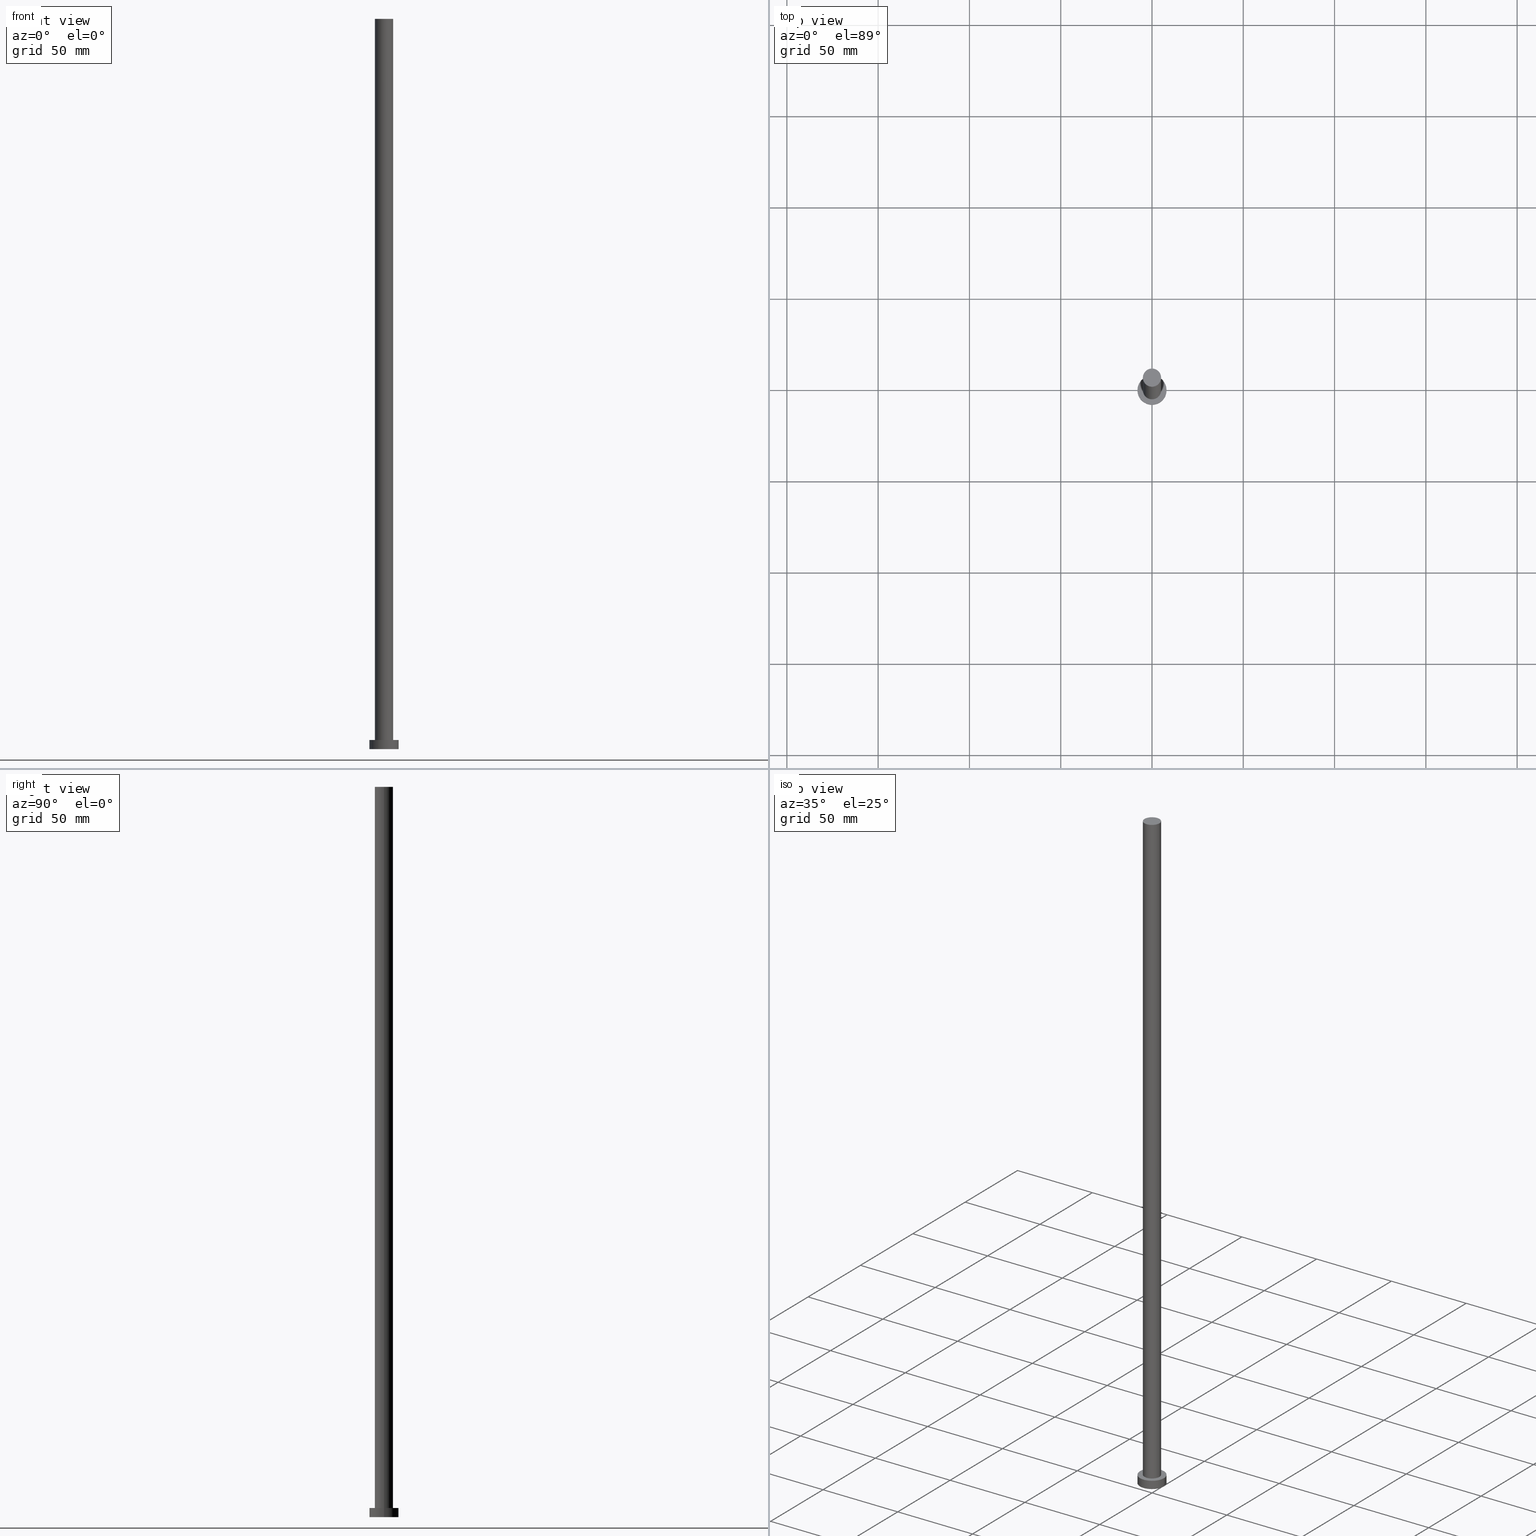
[diagram: canonical four-view strip — front | top / right | iso, engineering-drawing reading convention]
A machine part, canonical four-view strip (front | top / right | iso — engineering-drawing reading convention). The complete STEP part file that produces these views, byte-faithful:
ISO-10303-21;
HEADER;
FILE_DESCRIPTION (( 'STEP AP203' ),
    '1' );
FILE_NAME ('f08e.STEP',
    '2023-02-12T11:26:54',
    ( '' ),
    ( '' ),
    'SwSTEP 2.0',
    'SolidWorks 2019',
    '' );
FILE_SCHEMA (( 'CONFIG_CONTROL_DESIGN' ));
ENDSEC;

DATA;
#1 = EDGE_LOOP ( 'NONE', ( #123, #141 ) ) ;
#2 = DATE_AND_TIME ( #174, #136 ) ;
#3 = DIRECTION ( 'NONE',  ( 1.000000000000000000, 0.000000000000000000, 0.000000000000000000 ) ) ;
#4 = COORDINATED_UNIVERSAL_TIME_OFFSET ( 1, 0, .AHEAD. ) ;
#5 = CYLINDRICAL_SURFACE ( 'NONE', #151, 8.000000000000000000 ) ;
#6 = PERSON ( 'NEUR�EN�', 'NEUR�EN�', 'NEUR�EN�', ('NEUR�EN�'), ('NEUR�EN�'), ('NEUR�EN�') ) ;
#7 = ORIENTED_EDGE ( 'NONE', *, *, #164, .F. ) ;
#8 = PERSON_AND_ORGANIZATION_ROLE ( 'design_owner' ) ;
#9 = ORIENTED_EDGE ( 'NONE', *, *, #133, .T. ) ;
#10 = EDGE_CURVE ( 'NONE', #57, #79, #145, .T. ) ;
#11 = CALENDAR_DATE ( 2023, 12, 2 ) ;
#12 = CC_DESIGN_PERSON_AND_ORGANIZATION_ASSIGNMENT ( #28, #88, ( #237 ) ) ;
#13 = DIRECTION ( 'NONE',  ( 0.000000000000000000, 0.000000000000000000, 1.000000000000000000 ) ) ;
#14 = DIRECTION ( 'NONE',  ( 1.000000000000000000, 0.000000000000000000, 0.000000000000000000 ) ) ;
#15 = DIRECTION ( 'NONE',  ( 1.000000000000000000, 0.000000000000000000, 0.000000000000000000 ) ) ;
#16 = APPLICATION_CONTEXT ( 'configuration controlled 3d designs of mechanical parts and assemblies' ) ;
#17 = DIRECTION ( 'NONE',  ( 0.000000000000000000, 0.000000000000000000, 1.000000000000000000 ) ) ;
#18 = PRODUCT ( 'f08e', 'f08e', '', ( #104 ) ) ;
#19 = COORDINATED_UNIVERSAL_TIME_OFFSET ( 1, 0, .AHEAD. ) ;
#20 = EDGE_CURVE ( 'NONE', #81, #158, #184, .T. ) ;
#21 = ORIENTED_EDGE ( 'NONE', *, *, #155, .F. ) ;
#22 = ORIENTED_EDGE ( 'NONE', *, *, #233, .F. ) ;
#23 = ORIENTED_EDGE ( 'NONE', *, *, #187, .F. ) ;
#24 = PRODUCT_DEFINITION_FORMATION_WITH_SPECIFIED_SOURCE ( 'LIBOVOLN�', '', #18, .NOT_KNOWN. ) ;
#25 = CC_DESIGN_DATE_AND_TIME_ASSIGNMENT ( #2, #156, ( #37 ) ) ;
#26 = FACE_OUTER_BOUND ( 'NONE', #84, .T. ) ;
#27 = AXIS2_PLACEMENT_3D ( 'NONE', #95, #35, #15 ) ;
#28 = PERSON_AND_ORGANIZATION ( #6, #68 ) ;
#29 = CARTESIAN_POINT ( 'NONE',  ( 8.000000000000000000, 9.797174393178825657E-16, 5.000000000000000000 ) ) ;
#30 = AXIS2_PLACEMENT_3D ( 'NONE', #102, #44, #62 ) ;
#31 = DIRECTION ( 'NONE',  ( 0.000000000000000000, 0.000000000000000000, 1.000000000000000000 ) ) ;
#32 = FACE_OUTER_BOUND ( 'NONE', #75, .T. ) ;
#33 = AXIS2_PLACEMENT_3D ( 'NONE', #50, #131, #213 ) ;
#34 = DIRECTION ( 'NONE',  ( 1.000000000000000000, 0.000000000000000000, 0.000000000000000000 ) ) ;
#35 = DIRECTION ( 'NONE',  ( 0.000000000000000000, 0.000000000000000000, 1.000000000000000000 ) ) ;
#36 = PERSON_AND_ORGANIZATION_ROLE ( 'creator' ) ;
#37 = PRODUCT_DEFINITION ( 'NEZN�M�', '', #24, #244 ) ;
#38 = ORIENTED_EDGE ( 'NONE', *, *, #245, .T. ) ;
#39 = PLANE ( 'NONE',  #203 ) ;
#40 = ADVANCED_FACE ( 'NONE', ( #182 ), #39, .T. ) ;
#41 = ORIENTED_EDGE ( 'NONE', *, *, #155, .T. ) ;
#42 = APPROVAL_STATUS ( 'not_yet_approved' ) ;
#43 = CIRCLE ( 'NONE', #30, 5.000000000000000888 ) ;
#44 = DIRECTION ( 'NONE',  ( 0.000000000000000000, 0.000000000000000000, 1.000000000000000000 ) ) ;
#45 = APPROVAL_PERSON_ORGANIZATION ( #148, #239, #51 ) ;
#46 = DIRECTION ( 'NONE',  ( 1.000000000000000000, 0.000000000000000000, 0.000000000000000000 ) ) ;
#47 = DIRECTION ( 'NONE',  ( -0.000000000000000000, -0.000000000000000000, -1.000000000000000000 ) ) ;
#48 = CARTESIAN_POINT ( 'NONE',  ( 0.000000000000000000, 0.000000000000000000, 400.0000000000000000 ) ) ;
#49 = DATE_AND_TIME ( #11, #92 ) ;
#50 = CARTESIAN_POINT ( 'NONE',  ( 0.000000000000000000, 0.000000000000000000, 5.000000000000000000 ) ) ;
#51 = APPROVAL_ROLE ( '' ) ;
#52 = DIRECTION ( 'NONE',  ( 1.000000000000000000, 0.000000000000000000, -0.000000000000000000 ) ) ;
#53 = DATE_AND_TIME ( #85, #106 ) ;
#54 = APPROVAL_STATUS ( 'not_yet_approved' ) ;
#55 = ORIENTED_EDGE ( 'NONE', *, *, #87, .T. ) ;
#56 = APPLICATION_CONTEXT ( 'configuration controlled 3d designs of mechanical parts and assemblies' ) ;
#57 = VERTEX_POINT ( 'NONE', #86 ) ;
#58 = VECTOR ( 'NONE', #255, 1000.000000000000000 ) ;
#59 = ORIENTED_EDGE ( 'NONE', *, *, #249, .F. ) ;
#60 = DIRECTION ( 'NONE',  ( 0.000000000000000000, 0.000000000000000000, 1.000000000000000000 ) ) ;
#61 = PERSON_AND_ORGANIZATION_ROLE ( 'design_supplier' ) ;
#62 = DIRECTION ( 'NONE',  ( 1.000000000000000000, 0.000000000000000000, 0.000000000000000000 ) ) ;
#63 = ADVANCED_FACE ( 'NONE', ( #163 ), #5, .T. ) ;
#64 = DIRECTION ( 'NONE',  ( -0.000000000000000000, -0.000000000000000000, -1.000000000000000000 ) ) ;
#65 = DIRECTION ( 'NONE',  ( 0.000000000000000000, 0.000000000000000000, 1.000000000000000000 ) ) ;
#66 = COORDINATED_UNIVERSAL_TIME_OFFSET ( 1, 0, .AHEAD. ) ;
#67 = CARTESIAN_POINT ( 'NONE',  ( 0.000000000000000000, 0.000000000000000000, 5.000000000000000000 ) ) ;
#68 = ORGANIZATION ( 'NEUR�EN�', 'NEUR�EN�', '' ) ;
#69 = APPROVAL ( #42, 'NEUR�EN�' ) ;
#70 = AXIS2_PLACEMENT_3D ( 'NONE', #109, #166, #46 ) ;
#71 = CIRCLE ( 'NONE', #97, 8.000000000000000000 ) ;
#72 = LINE ( 'NONE', #150, #159 ) ;
#73 = ORIENTED_EDGE ( 'NONE', *, *, #20, .T. ) ;
#74 = CYLINDRICAL_SURFACE ( 'NONE', #198, 5.000000000000000888 ) ;
#75 = EDGE_LOOP ( 'NONE', ( #83, #7, #41, #38 ) ) ;
#76 = CARTESIAN_POINT ( 'NONE',  ( -8.000000000000000000, 0.000000000000000000, 5.000000000000000000 ) ) ;
#77 = DATE_AND_TIME ( #169, #176 ) ;
#78 = APPROVAL_ROLE ( '' ) ;
#79 = VERTEX_POINT ( 'NONE', #143 ) ;
#80 = APPROVAL_ROLE ( '' ) ;
#81 = VERTEX_POINT ( 'NONE', #243 ) ;
#82 = APPROVAL_DATE_TIME ( #53, #69 ) ;
#83 = ORIENTED_EDGE ( 'NONE', *, *, #254, .F. ) ;
#84 = EDGE_LOOP ( 'NONE', ( #214, #9, #55, #22 ) ) ;
#85 = CALENDAR_DATE ( 2023, 12, 2 ) ;
#86 = CARTESIAN_POINT ( 'NONE',  ( 8.000000000000000000, 9.797174393178825657E-16, 0.000000000000000000 ) ) ;
#87 = EDGE_CURVE ( 'NONE', #121, #137, #43, .T. ) ;
#88 = PERSON_AND_ORGANIZATION_ROLE ( 'classification_officer' ) ;
#89 = CARTESIAN_POINT ( 'NONE',  ( 5.000000000000000888, 6.123233995736766282E-16, 5.000000000000000000 ) ) ;
#90 = CLOSED_SHELL ( 'NONE', ( #124, #63, #173, #110, #206, #217, #40 ) ) ;
#91 = AXIS2_PLACEMENT_3D ( 'NONE', #105, #178, #3 ) ;
#92 = LOCAL_TIME ( 12, 26, 54.00000000000000000, #127 ) ;
#93 = DIRECTION ( 'NONE',  ( -0.000000000000000000, -0.000000000000000000, -1.000000000000000000 ) ) ;
#94 = PLANE ( 'NONE',  #126 ) ;
#95 = CARTESIAN_POINT ( 'NONE',  ( 0.000000000000000000, 0.000000000000000000, 400.0000000000000000 ) ) ;
#96 = COORDINATED_UNIVERSAL_TIME_OFFSET ( 1, 0, .AHEAD. ) ;
#97 = AXIS2_PLACEMENT_3D ( 'NONE', #113, #13, #34 ) ;
#98 = DIRECTION ( 'NONE',  ( 1.000000000000000000, 0.000000000000000000, 0.000000000000000000 ) ) ;
#99 = ADVANCED_BREP_SHAPE_REPRESENTATION ( 'f08e', ( #190, #116 ), #223 ) ;
#100 = ORIENTED_EDGE ( 'NONE', *, *, #118, .T. ) ;
#101 = CARTESIAN_POINT ( 'NONE',  ( 0.000000000000000000, 0.000000000000000000, 0.000000000000000000 ) ) ;
#102 = CARTESIAN_POINT ( 'NONE',  ( 0.000000000000000000, 0.000000000000000000, 5.000000000000000000 ) ) ;
#103 = ORIENTED_EDGE ( 'NONE', *, *, #249, .T. ) ;
#104 = MECHANICAL_CONTEXT ( 'NONE', #56, 'mechanical' ) ;
#105 = CARTESIAN_POINT ( 'NONE',  ( 0.000000000000000000, 0.000000000000000000, 400.0000000000000000 ) ) ;
#106 = LOCAL_TIME ( 12, 26, 54.00000000000000000, #4 ) ;
#107 = CIRCLE ( 'NONE', #251, 8.000000000000000000 ) ;
#108 = PRODUCT_DEFINITION_SHAPE ( 'NONE', 'NONE',  #37 ) ;
#109 = CARTESIAN_POINT ( 'NONE',  ( 0.000000000000000000, 0.000000000000000000, 5.000000000000000000 ) ) ;
#110 = ADVANCED_FACE ( 'NONE', ( #160, #229 ), #197, .T. ) ;
#111 = CC_DESIGN_SECURITY_CLASSIFICATION ( #237, ( #24 ) ) ;
#112 = APPLICATION_PROTOCOL_DEFINITION ( 'international standard', 'config_control_design', 1994, #56 ) ;
#113 = CARTESIAN_POINT ( 'NONE',  ( 0.000000000000000000, 0.000000000000000000, 5.000000000000000000 ) ) ;
#114 = CIRCLE ( 'NONE', #33, 8.000000000000000000 ) ;
#115 = DIRECTION ( 'NONE',  ( -0.000000000000000000, -0.000000000000000000, -1.000000000000000000 ) ) ;
#116 = AXIS2_PLACEMENT_3D ( 'NONE', #101, #204, #142 ) ;
#117 = UNCERTAINTY_MEASURE_WITH_UNIT (LENGTH_MEASURE( 1.000000000000000082E-05 ), #130, 'distance_accuracy_value', 'NONE');
#118 = EDGE_CURVE ( 'NONE', #137, #121, #227, .T. ) ;
#119 = ORIENTED_EDGE ( 'NONE', *, *, #133, .F. ) ;
#120 = DIRECTION ( 'NONE',  ( -0.000000000000000000, -0.000000000000000000, -1.000000000000000000 ) ) ;
#121 = VERTEX_POINT ( 'NONE', #89 ) ;
#122 = PRODUCT_RELATED_PRODUCT_CATEGORY ( 'detail', '', ( #18 ) ) ;
#123 = ORIENTED_EDGE ( 'NONE', *, *, #164, .T. ) ;
#124 = ADVANCED_FACE ( 'NONE', ( #26 ), #246, .T. ) ;
#125 = CARTESIAN_POINT ( 'NONE',  ( -5.000000000000000888, 0.000000000000000000, 5.000000000000000000 ) ) ;
#126 = AXIS2_PLACEMENT_3D ( 'NONE', #212, #31, #52 ) ;
#127 = COORDINATED_UNIVERSAL_TIME_OFFSET ( 1, 0, .AHEAD. ) ;
#128 = DIRECTION ( 'NONE',  ( -1.000000000000000000, 0.000000000000000000, 0.000000000000000000 ) ) ;
#129 = CC_DESIGN_DATE_AND_TIME_ASSIGNMENT ( #215, #195, ( #237 ) ) ;
#130 =( LENGTH_UNIT ( ) NAMED_UNIT ( * ) SI_UNIT ( .MILLI., .METRE. ) );
#131 = DIRECTION ( 'NONE',  ( 0.000000000000000000, 0.000000000000000000, 1.000000000000000000 ) ) ;
#132 = VERTEX_POINT ( 'NONE', #29 ) ;
#133 = EDGE_CURVE ( 'NONE', #81, #121, #208, .T. ) ;
#134 = CYLINDRICAL_SURFACE ( 'NONE', #210, 8.000000000000000000 ) ;
#135 = FACE_OUTER_BOUND ( 'NONE', #224, .T. ) ;
#136 = LOCAL_TIME ( 12, 26, 54.00000000000000000, #19 ) ;
#137 = VERTEX_POINT ( 'NONE', #125 ) ;
#138 = APPROVAL ( #54, 'NEUR�EN�' ) ;
#139 = CIRCLE ( 'NONE', #27, 5.000000000000000888 ) ;
#140 = DIRECTION ( 'NONE',  ( 1.000000000000000000, 0.000000000000000000, -0.000000000000000000 ) ) ;
#141 = ORIENTED_EDGE ( 'NONE', *, *, #187, .T. ) ;
#142 = DIRECTION ( 'NONE',  ( 1.000000000000000000, 0.000000000000000000, 0.000000000000000000 ) ) ;
#143 = CARTESIAN_POINT ( 'NONE',  ( -8.000000000000000000, 0.000000000000000000, 0.000000000000000000 ) ) ;
#144 = ORIENTED_EDGE ( 'NONE', *, *, #254, .T. ) ;
#145 = CIRCLE ( 'NONE', #209, 8.000000000000000000 ) ;
#146 = CALENDAR_DATE ( 2023, 12, 2 ) ;
#147 = DIRECTION ( 'NONE',  ( 1.000000000000000000, 0.000000000000000000, -0.000000000000000000 ) ) ;
#148 = PERSON_AND_ORGANIZATION ( #6, #68 ) ;
#149 = APPROVAL_STATUS ( 'not_yet_approved' ) ;
#150 = CARTESIAN_POINT ( 'NONE',  ( -8.000000000000000000, 0.000000000000000000, 5.000000000000000000 ) ) ;
#151 = AXIS2_PLACEMENT_3D ( 'NONE', #221, #120, #201 ) ;
#152 =( NAMED_UNIT ( * ) SI_UNIT ( $, .STERADIAN. ) SOLID_ANGLE_UNIT ( ) );
#153 = SHAPE_DEFINITION_REPRESENTATION ( #108, #99 ) ;
#154 = CC_DESIGN_APPROVAL ( #239, ( #237 ) ) ;
#155 = EDGE_CURVE ( 'NONE', #180, #79, #72, .T. ) ;
#156 = DATE_TIME_ROLE ( 'creation_date' ) ;
#157 = ORIENTED_EDGE ( 'NONE', *, *, #118, .F. ) ;
#158 = VERTEX_POINT ( 'NONE', #252 ) ;
#159 = VECTOR ( 'NONE', #232, 1000.000000000000000 ) ;
#160 = FACE_BOUND ( 'NONE', #175, .T. ) ;
#161 = CC_DESIGN_PERSON_AND_ORGANIZATION_ASSIGNMENT ( #183, #61, ( #24 ) ) ;
#162 = CARTESIAN_POINT ( 'NONE',  ( 0.000000000000000000, 0.000000000000000000, 0.000000000000000000 ) ) ;
#163 = FACE_OUTER_BOUND ( 'NONE', #199, .T. ) ;
#164 = EDGE_CURVE ( 'NONE', #180, #132, #114, .T. ) ;
#165 = CC_DESIGN_APPROVAL ( #138, ( #24 ) ) ;
#166 = DIRECTION ( 'NONE',  ( 0.000000000000000000, 0.000000000000000000, 1.000000000000000000 ) ) ;
#167 = LINE ( 'NONE', #193, #222 ) ;
#168 = AXIS2_PLACEMENT_3D ( 'NONE', #48, #47, #128 ) ;
#169 = CALENDAR_DATE ( 2023, 12, 2 ) ;
#170 = DIRECTION ( 'NONE',  ( -0.000000000000000000, -0.000000000000000000, -1.000000000000000000 ) ) ;
#171 = LINE ( 'NONE', #196, #58 ) ;
#172 =( NAMED_UNIT ( * ) PLANE_ANGLE_UNIT ( ) SI_UNIT ( $, .RADIAN. ) );
#173 = ADVANCED_FACE ( 'NONE', ( #32 ), #134, .T. ) ;
#174 = CALENDAR_DATE ( 2023, 12, 2 ) ;
#175 = EDGE_LOOP ( 'NONE', ( #157, #241 ) ) ;
#176 = LOCAL_TIME ( 12, 26, 54.00000000000000000, #96 ) ;
#177 = PERSON_AND_ORGANIZATION ( #6, #68 ) ;
#178 = DIRECTION ( 'NONE',  ( 0.000000000000000000, 0.000000000000000000, 1.000000000000000000 ) ) ;
#179 = PERSON_AND_ORGANIZATION ( #6, #68 ) ;
#180 = VERTEX_POINT ( 'NONE', #76 ) ;
#181 = EDGE_LOOP ( 'NONE', ( #103, #73 ) ) ;
#182 = FACE_OUTER_BOUND ( 'NONE', #181, .T. ) ;
#183 = PERSON_AND_ORGANIZATION ( #6, #68 ) ;
#184 = CIRCLE ( 'NONE', #91, 5.000000000000000888 ) ;
#185 = CC_DESIGN_PERSON_AND_ORGANIZATION_ASSIGNMENT ( #211, #192, ( #24 ) ) ;
#186 = LOCAL_TIME ( 12, 26, 54.00000000000000000, #66 ) ;
#187 = EDGE_CURVE ( 'NONE', #132, #180, #71, .T. ) ;
#188 = AXIS2_PLACEMENT_3D ( 'NONE', #67, #65, #147 ) ;
#189 = APPROVAL_PERSON_ORGANIZATION ( #177, #69, #78 ) ;
#190 = MANIFOLD_SOLID_BREP ( 'P�idat vysunut�m3', #90 ) ;
#191 = FACE_OUTER_BOUND ( 'NONE', #226, .T. ) ;
#192 = PERSON_AND_ORGANIZATION_ROLE ( 'creator' ) ;
#193 = CARTESIAN_POINT ( 'NONE',  ( -5.000000000000000888, 0.000000000000000000, 400.0000000000000000 ) ) ;
#194 = CARTESIAN_POINT ( 'NONE',  ( 0.000000000000000000, 0.000000000000000000, 0.000000000000000000 ) ) ;
#195 = DATE_TIME_ROLE ( 'classification_date' ) ;
#196 = CARTESIAN_POINT ( 'NONE',  ( 8.000000000000000000, 9.797174393178825657E-16, 5.000000000000000000 ) ) ;
#197 = PLANE ( 'NONE',  #188 ) ;
#198 = AXIS2_PLACEMENT_3D ( 'NONE', #218, #115, #234 ) ;
#199 = EDGE_LOOP ( 'NONE', ( #23, #144, #240, #21 ) ) ;
#200 = CC_DESIGN_PERSON_AND_ORGANIZATION_ASSIGNMENT ( #179, #8, ( #18 ) ) ;
#201 = DIRECTION ( 'NONE',  ( -1.000000000000000000, 0.000000000000000000, 0.000000000000000000 ) ) ;
#202 = ORIENTED_EDGE ( 'NONE', *, *, #233, .T. ) ;
#203 = AXIS2_PLACEMENT_3D ( 'NONE', #242, #60, #140 ) ;
#204 = DIRECTION ( 'NONE',  ( 0.000000000000000000, 0.000000000000000000, 1.000000000000000000 ) ) ;
#205 = ORIENTED_EDGE ( 'NONE', *, *, #245, .F. ) ;
#206 = ADVANCED_FACE ( 'NONE', ( #191 ), #94, .F. ) ;
#207 = SECURITY_CLASSIFICATION_LEVEL ( 'unclassified' ) ;
#208 = LINE ( 'NONE', #231, #250 ) ;
#209 = AXIS2_PLACEMENT_3D ( 'NONE', #162, #220, #98 ) ;
#210 = AXIS2_PLACEMENT_3D ( 'NONE', #216, #93, #236 ) ;
#211 = PERSON_AND_ORGANIZATION ( #6, #68 ) ;
#212 = CARTESIAN_POINT ( 'NONE',  ( 0.000000000000000000, 0.000000000000000000, 0.000000000000000000 ) ) ;
#213 = DIRECTION ( 'NONE',  ( 1.000000000000000000, 0.000000000000000000, 0.000000000000000000 ) ) ;
#214 = ORIENTED_EDGE ( 'NONE', *, *, #20, .F. ) ;
#215 = DATE_AND_TIME ( #146, #186 ) ;
#216 = CARTESIAN_POINT ( 'NONE',  ( 0.000000000000000000, 0.000000000000000000, 5.000000000000000000 ) ) ;
#217 = ADVANCED_FACE ( 'NONE', ( #135 ), #74, .T. ) ;
#218 = CARTESIAN_POINT ( 'NONE',  ( 0.000000000000000000, 0.000000000000000000, 400.0000000000000000 ) ) ;
#219 = PERSON_AND_ORGANIZATION ( #6, #68 ) ;
#220 = DIRECTION ( 'NONE',  ( 0.000000000000000000, 0.000000000000000000, 1.000000000000000000 ) ) ;
#221 = CARTESIAN_POINT ( 'NONE',  ( 0.000000000000000000, 0.000000000000000000, 5.000000000000000000 ) ) ;
#222 = VECTOR ( 'NONE', #170, 1000.000000000000000 ) ;
#223 =( GEOMETRIC_REPRESENTATION_CONTEXT ( 3 ) GLOBAL_UNCERTAINTY_ASSIGNED_CONTEXT ( ( #117 ) ) GLOBAL_UNIT_ASSIGNED_CONTEXT ( ( #130, #172, #152 ) ) REPRESENTATION_CONTEXT ( 'NONE', 'WORKASPACE' ) );
#224 = EDGE_LOOP ( 'NONE', ( #119, #59, #202, #100 ) ) ;
#225 = APPLICATION_PROTOCOL_DEFINITION ( 'international standard', 'config_control_design', 1994, #16 ) ;
#226 = EDGE_LOOP ( 'NONE', ( #205, #253 ) ) ;
#227 = CIRCLE ( 'NONE', #70, 5.000000000000000888 ) ;
#228 = CC_DESIGN_PERSON_AND_ORGANIZATION_ASSIGNMENT ( #219, #36, ( #37 ) ) ;
#229 = FACE_OUTER_BOUND ( 'NONE', #1, .T. ) ;
#230 = APPROVAL_PERSON_ORGANIZATION ( #238, #138, #80 ) ;
#231 = CARTESIAN_POINT ( 'NONE',  ( 5.000000000000000888, 6.123233995736766282E-16, 400.0000000000000000 ) ) ;
#232 = DIRECTION ( 'NONE',  ( -0.000000000000000000, -0.000000000000000000, -1.000000000000000000 ) ) ;
#233 = EDGE_CURVE ( 'NONE', #158, #137, #167, .T. ) ;
#234 = DIRECTION ( 'NONE',  ( -1.000000000000000000, 0.000000000000000000, 0.000000000000000000 ) ) ;
#235 = APPROVAL_DATE_TIME ( #77, #239 ) ;
#236 = DIRECTION ( 'NONE',  ( -1.000000000000000000, 0.000000000000000000, 0.000000000000000000 ) ) ;
#237 = SECURITY_CLASSIFICATION ( '', '', #207 ) ;
#238 = PERSON_AND_ORGANIZATION ( #6, #68 ) ;
#239 = APPROVAL ( #149, 'NEUR�EN�' ) ;
#240 = ORIENTED_EDGE ( 'NONE', *, *, #10, .T. ) ;
#241 = ORIENTED_EDGE ( 'NONE', *, *, #87, .F. ) ;
#242 = CARTESIAN_POINT ( 'NONE',  ( 0.000000000000000000, 0.000000000000000000, 400.0000000000000000 ) ) ;
#243 = CARTESIAN_POINT ( 'NONE',  ( 5.000000000000000888, 6.123233995736766282E-16, 400.0000000000000000 ) ) ;
#244 = DESIGN_CONTEXT ( 'detailed design', #16, 'design' ) ;
#245 = EDGE_CURVE ( 'NONE', #79, #57, #107, .T. ) ;
#246 = CYLINDRICAL_SURFACE ( 'NONE', #168, 5.000000000000000888 ) ;
#247 = CC_DESIGN_APPROVAL ( #69, ( #37 ) ) ;
#248 = APPROVAL_DATE_TIME ( #49, #138 ) ;
#249 = EDGE_CURVE ( 'NONE', #158, #81, #139, .T. ) ;
#250 = VECTOR ( 'NONE', #64, 1000.000000000000000 ) ;
#251 = AXIS2_PLACEMENT_3D ( 'NONE', #194, #17, #14 ) ;
#252 = CARTESIAN_POINT ( 'NONE',  ( -5.000000000000000888, 0.000000000000000000, 400.0000000000000000 ) ) ;
#253 = ORIENTED_EDGE ( 'NONE', *, *, #10, .F. ) ;
#254 = EDGE_CURVE ( 'NONE', #132, #57, #171, .T. ) ;
#255 = DIRECTION ( 'NONE',  ( -0.000000000000000000, -0.000000000000000000, -1.000000000000000000 ) ) ;
ENDSEC;
END-ISO-10303-21;
